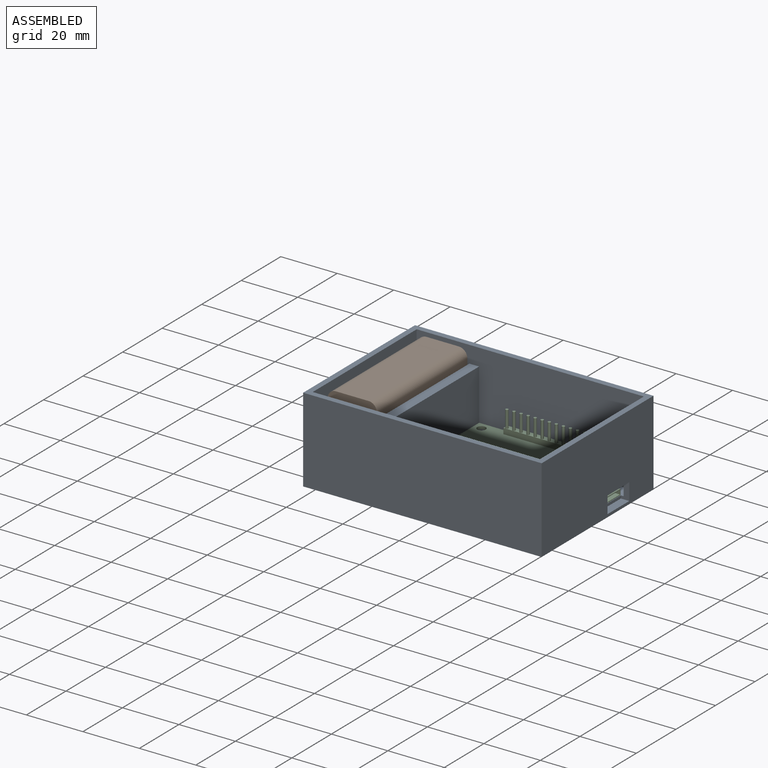
[diagram: assembled view]
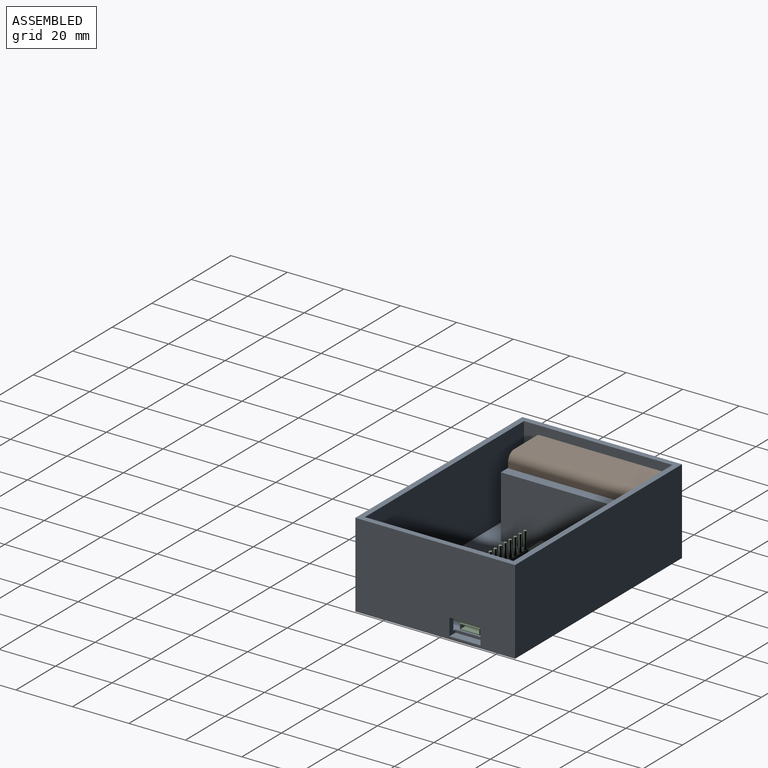
[diagram: assembled view, second angle]
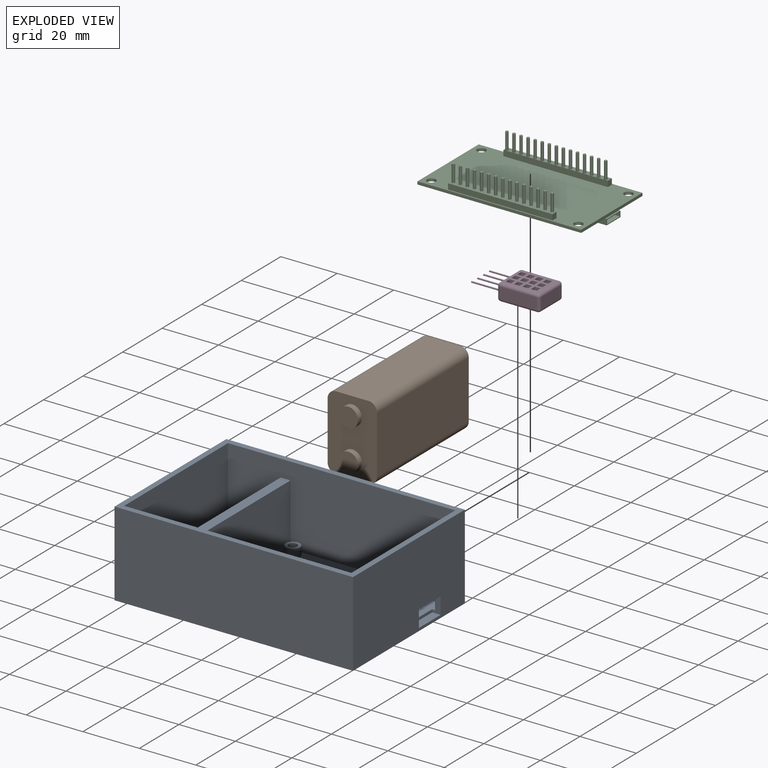
[diagram: exploded view]
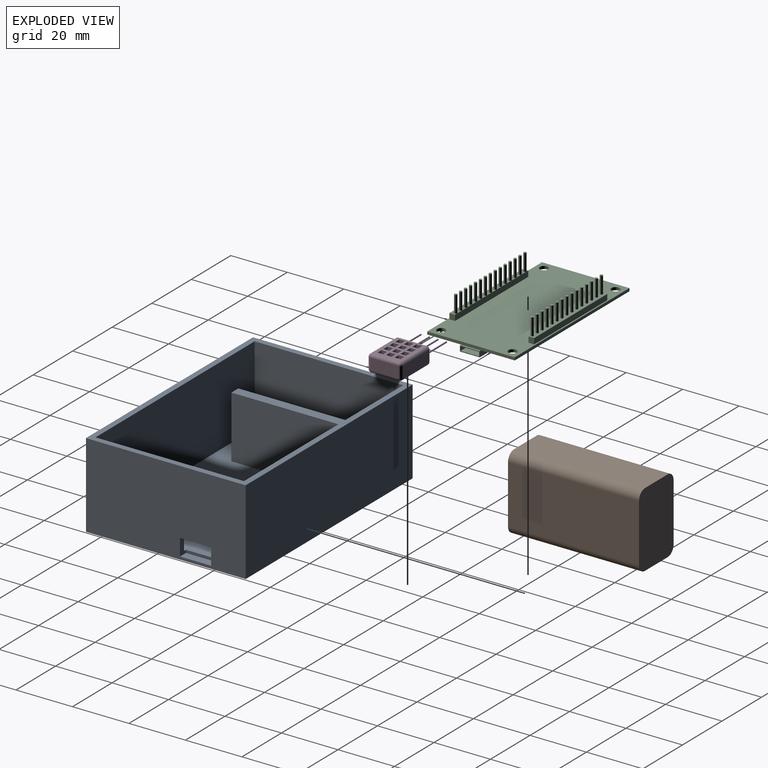
[diagram: exploded view, second angle]
ASSEMBLY  parts=4 mates=3
PART A: 42 faces, bbox 84.5x56.6x30 mm
  f0: plane 80.46x52.56mm, normal (0,0,1), area 3943.3mm2, adj f2,f8,f9,f10,f12,f15,f20,f23
  f1: plane 56.56x30mm, normal (1,0,0), area 1630.7mm2, adj f3,f4,f5,f7,f27,f28,f29,f30
  f2: plane 52.56x28mm, normal (-1,0,0), area 1400.6mm2, adj f0,f3,f8,f9,f27,f29,f30,f36
  f3: plane 84.46x56.56mm, normal (0,0,1), area 548.1mm2, adj f1,f2,f4,f5,f6,f8,f9,f10
  f4: plane 84.46x30mm, normal (0,-1,0), area 2533.9mm2, adj f1,f3,f6,f7
  f5: plane 84.46x30mm, normal (0,1,0), area 2533.9mm2, adj f1,f3,f6,f7
  f6: plane 56.56x30mm, normal (-1,0,0), area 1696.7mm2, adj f3,f4,f5,f7
  f7: plane 84.46x56.56mm, normal (0,0,-1), area 4777mm2, adj f1,f4,f5,f6
  f8: plane 80.46x28mm, normal (0,1,0), area 2252.9mm2, adj f0,f2,f3,f10
  f9: plane 80.46x28mm, normal (0,-1,0), area 2176.6mm2, adj f0,f2,f3,f10,f32,f34,f35
  f10: plane 52.56x28mm, normal (1,0,0), area 1471.6mm2, adj f0,f3,f8,f9
  f11: cylinder r=1.5mm len=3mm, axis (0,0,-1), area 28.3mm2, adj f13,f14
  f12: cylinder r=2.5mm len=5mm, axis (0,0,-1), area 47.1mm2, adj f0,f13
  f13: plane 5x5mm, normal (0,0,1), area 12.6mm2, adj f11,f12
  f14: plane 3x3mm, normal (0,0,1), area 7.1mm2, adj f11
  f15: cylinder r=2.5mm len=5mm, axis (0,0,-1), area 47.1mm2, adj f0,f17
  f16: cylinder r=1.5mm len=3mm, axis (0,0,-1), area 28.3mm2, adj f17,f18
  f17: plane 5x5mm, normal (0,0,1), area 12.6mm2, adj f15,f16
  f18: plane 3x3mm, normal (0,0,1), area 7.1mm2, adj f16
  f19: cylinder r=1.5mm len=3mm, axis (0,0,-1), area 28.3mm2, adj f21,f22
  f20: cylinder r=2.5mm len=5mm, axis (0,0,-1), area 47.1mm2, adj f0,f21
  f21: plane 5x5mm, normal (0,0,1), area 12.6mm2, adj f19,f20
  f22: plane 3x3mm, normal (0,0,1), area 7.1mm2, adj f19
  f23: cylinder r=2.5mm len=5mm, axis (0,0,-1), area 47.1mm2, adj f0,f25
  f24: cylinder r=1.5mm len=3mm, axis (0,0,-1), area 28.3mm2, adj f25,f26
  f25: plane 5x5mm, normal (0,0,1), area 12.6mm2, adj f23,f24
  f26: plane 3x3mm, normal (0,0,1), area 7.1mm2, adj f24
  f27: plane 6x3mm, normal (0,1,0), area 13mm2, adj f0,f1,f2,f28,f30,f31
  f28: plane 11x3mm, normal (0,0,1), area 33mm2, adj f1,f27,f29,f31
  f29: plane 6x3mm, normal (0,-1,0), area 13mm2, adj f0,f1,f2,f28,f30,f31
  f30: plane 11x2mm, normal (0,0,-1), area 22mm2, adj f1,f2,f27,f29
  f31: plane 11x1mm, normal (1,0,0), area 11mm2, adj f0,f27,f28,f29
  f32: plane 45.28x22mm, normal (-1,0,0), area 996.2mm2, adj f0,f9,f33,f35
  f33: plane 22x3.47mm, normal (0,-1,0), area 76.3mm2, adj f0,f32,f34,f35
  f34: plane 45.28x22mm, normal (1,0,0), area 996.2mm2, adj f0,f9,f33,f35
  f35: plane 45.28x3.47mm, normal (0,0,1), area 157.1mm2, adj f9,f32,f33,f34
  f36: plane 18x8mm, normal (0,1,0), area 144mm2, adj f0,f2,f37,f41
  f37: plane 8x3.47mm, normal (-1,0,0), area 27.8mm2, adj f0,f36,f38,f41
  f38: plane 8x2mm, normal (0,-1,0), area 16mm2, adj f0,f37,f39,f41
  f39: plane 8x1.47mm, normal (1,0,0), area 11.8mm2, adj f0,f38,f40,f41
  f40: plane 16x8mm, normal (0,-1,0), area 128mm2, adj f0,f2,f39,f41
  f41: plane 18x3.47mm, normal (0,0,1), area 38.9mm2, adj f2,f36,f37,f38,f39,f40
PART B: 14 faces, bbox 48.4x26.5x17.5 mm
  f0: plane 46.4x11.5mm, normal (0,-1,0), area 533.6mm2, adj f1,f3,f7,f9
  f1: plane 26.5x17.5mm, normal (1,0,0), area 382.3mm2, adj f0,f2,f4,f5,f6,f7,f8,f9
  f2: plane 46.4x11.5mm, normal (0,1,0), area 533.6mm2, adj f1,f3,f6,f8
  f3: plane 26.5x17.5mm, normal (-1,0,0), area 456mm2, adj f0,f2,f4,f5,f6,f7,f8,f9
  f4: plane 46.4x20.5mm, normal (0,0,1), area 951.2mm2, adj f1,f3,f8,f9
  f5: plane 46.4x20.5mm, normal (0,0,-1), area 951.2mm2, adj f1,f3,f6,f7
  f6: cylinder r=3mm len=46.4mm, axis (-1,0,0), area 218.7mm2, adj f1,f2,f3,f5
  f7: cylinder r=3mm len=46.4mm, axis (1,0,0), area 218.7mm2, adj f0,f1,f3,f5
  f8: cylinder r=3mm len=46.4mm, axis (1,0,0), area 218.7mm2, adj f1,f2,f3,f4
  f9: cylinder r=3mm len=46.4mm, axis (-1,0,0), area 218.7mm2, adj f0,f1,f3,f4
  f10: cylinder r=3.43mm len=6.85mm, axis (-1,0,0), area 43.1mm2, adj f1,f11
  f11: plane 6.85x6.85mm, normal (1,0,0), area 36.9mm2, adj f10
  f12: cylinder r=3.43mm len=6.85mm, axis (-1,0,0), area 43.1mm2, adj f1,f13
  f13: plane 6.85x6.85mm, normal (1,0,0), area 36.9mm2, adj f12
PART C: 91 faces, bbox 58.6x31x11 mm
  f0: plane 58x31mm, normal (0,0,-1), area 1621.7mm2, adj f3,f4,f5,f6,f7,f8,f9,f10
  f1: plane 7x2mm, normal (1,0,0), area 4.3mm2, adj f11,f12,f13,f15,f16,f17,f18,f19
  f2: plane 58x31mm, normal (0,0,1), area 1739.1mm2, adj f3,f4,f5,f6,f7,f8,f9,f10
  f3: plane 58x1mm, normal (0,-1,0), area 58mm2, adj f0,f2,f4,f6
  f4: plane 31x1mm, normal (1,0,0), area 31mm2, adj f0,f2,f3,f5,f11
  f5: plane 58x1mm, normal (0,1,0), area 58mm2, adj f0,f2,f4,f6
  f6: plane 31x1mm, normal (-1,0,0), area 31mm2, adj f0,f2,f3,f5
  f7: cylinder r=1.5mm len=3mm, axis (0,0,1), area 9.4mm2, adj f0,f2
  f8: cylinder r=1.5mm len=3mm, axis (0,0,1), area 9.4mm2, adj f0,f2
  f9: cylinder r=1.5mm len=3mm, axis (0,0,1), area 9.4mm2, adj f0,f2
  f10: cylinder r=1.5mm len=3mm, axis (0,0,1), area 9.4mm2, adj f0,f2
  f11: plane 7x0.63mm, normal (0,0,-1), area 4.4mm2, adj f1,f4,f12,f13
  f12: plane 5x2mm, normal (0,-1,0), area 10mm2, adj f1,f2,f11,f14,f15
  f13: plane 5x2mm, normal (0,1,0), area 10mm2, adj f1,f2,f11,f14,f15
  f14: plane 7x2mm, normal (-1,0,0), area 14mm2, adj f2,f12,f13,f15
  f15: plane 7x5mm, normal (0,0,1), area 35mm2, adj f1,f12,f13,f14
  f16: plane 3.3x1.47mm, normal (0,1,0), area 4.9mm2, adj f1,f17,f19,f20
  f17: plane 6.6x3.3mm, normal (0,0,1), area 21.8mm2, adj f1,f16,f18,f20
  f18: plane 3.3x1.47mm, normal (0,-1,0), area 4.9mm2, adj f1,f17,f19,f20
  f19: plane 6.6x3.3mm, normal (0,0,-1), area 21.8mm2, adj f1,f16,f18,f20
  f20: plane 6.6x1.47mm, normal (1,0,0), area 9.7mm2, adj f16,f17,f18,f19
  f21: plane 37x2mm, normal (0,1,0), area 74mm2, adj f0,f22,f24,f25
  f22: plane 2x2mm, normal (1,0,0), area 4mm2, adj f0,f21,f23,f25
  f23: plane 37x2mm, normal (0,-1,0), area 74mm2, adj f0,f22,f24,f25
  f24: plane 2x2mm, normal (-1,0,0), area 4mm2, adj f0,f21,f23,f25
  f25: plane 37x2mm, normal (0,0,-1), area 62.2mm2, adj f21,f22,f23,f24,f26,f28,f30,f32
  f26: cylinder r=0.5mm len=6mm, axis (0,0,1), area 18.8mm2, adj f25,f27
  f27: plane 1x1mm, normal (0,0,-1), area 0.8mm2, adj f26
  f28: cylinder r=0.5mm len=6mm, axis (0,0,1), area 18.8mm2, adj f25,f29
  f29: plane 1x1mm, normal (0,0,-1), area 0.8mm2, adj f28
  f30: cylinder r=0.5mm len=6mm, axis (0,0,1), area 18.8mm2, adj f25,f31
  f31: plane 1x1mm, normal (0,0,-1), area 0.8mm2, adj f30
  f32: cylinder r=0.5mm len=6mm, axis (0,0,1), area 18.8mm2, adj f25,f33
  f33: plane 1x1mm, normal (0,0,-1), area 0.8mm2, adj f32
  f34: cylinder r=0.5mm len=6mm, axis (0,0,1), area 18.8mm2, adj f25,f35
  f35: plane 1x1mm, normal (0,0,-1), area 0.8mm2, adj f34
  f36: cylinder r=0.5mm len=6mm, axis (0,0,1), area 18.8mm2, adj f25,f37
  f37: plane 1x1mm, normal (0,0,-1), area 0.8mm2, adj f36
  f38: cylinder r=0.5mm len=6mm, axis (0,0,1), area 18.8mm2, adj f25,f39
  f39: plane 1x1mm, normal (0,0,-1), area 0.8mm2, adj f38
  f40: cylinder r=0.5mm len=6mm, axis (0,0,1), area 18.8mm2, adj f25,f41
  f41: plane 1x1mm, normal (0,0,-1), area 0.8mm2, adj f40
  f42: cylinder r=0.5mm len=6mm, axis (0,0,1), area 18.8mm2, adj f25,f43
  f43: plane 1x1mm, normal (0,0,-1), area 0.8mm2, adj f42
  f44: cylinder r=0.5mm len=6mm, axis (0,0,1), area 18.8mm2, adj f25,f45
  f45: plane 1x1mm, normal (0,0,-1), area 0.8mm2, adj f44
  f46: cylinder r=0.5mm len=6mm, axis (0,0,1), area 18.8mm2, adj f25,f47
  f47: plane 1x1mm, normal (0,0,-1), area 0.8mm2, adj f46
  f48: cylinder r=0.5mm len=6mm, axis (0,0,1), area 18.8mm2, adj f25,f49
  f49: plane 1x1mm, normal (0,0,-1), area 0.8mm2, adj f48
  f50: cylinder r=0.5mm len=6mm, axis (0,0,1), area 18.8mm2, adj f25,f51
  f51: plane 1x1mm, normal (0,0,-1), area 0.8mm2, adj f50
  f52: cylinder r=0.5mm len=6mm, axis (0,0,1), area 18.8mm2, adj f25,f53
  f53: plane 1x1mm, normal (0,0,-1), area 0.8mm2, adj f52
  f54: cylinder r=0.5mm len=6mm, axis (0,0,1), area 18.8mm2, adj f25,f55
  f55: plane 1x1mm, normal (0,0,-1), area 0.8mm2, adj f54
  f56: plane 37x2mm, normal (0,-1,0), area 74mm2, adj f0,f57,f59,f60
  f57: plane 2x2mm, normal (-1,0,0), area 4mm2, adj f0,f56,f58,f60
  f58: plane 37x2mm, normal (0,1,0), area 74mm2, adj f0,f57,f59,f60
  f59: plane 2x2mm, normal (1,0,0), area 4mm2, adj f0,f56,f58,f60
  f60: plane 37x2mm, normal (0,0,-1), area 62.2mm2, adj f56,f57,f58,f59,f61,f63,f65,f67
  f61: cylinder r=0.5mm len=6mm, axis (0,0,1), area 18.8mm2, adj f60,f62
  f62: plane 1x1mm, normal (0,0,-1), area 0.8mm2, adj f61
  f63: cylinder r=0.5mm len=6mm, axis (0,0,1), area 18.8mm2, adj f60,f64
  f64: plane 1x1mm, normal (0,0,-1), area 0.8mm2, adj f63
  f65: cylinder r=0.5mm len=6mm, axis (0,0,1), area 18.8mm2, adj f60,f66
  f66: plane 1x1mm, normal (0,0,-1), area 0.8mm2, adj f65
  f67: cylinder r=0.5mm len=6mm, axis (0,0,1), area 18.8mm2, adj f60,f68
  f68: plane 1x1mm, normal (0,0,-1), area 0.8mm2, adj f67
  f69: cylinder r=0.5mm len=6mm, axis (0,0,1), area 18.8mm2, adj f60,f70
  f70: plane 1x1mm, normal (0,0,-1), area 0.8mm2, adj f69
  f71: cylinder r=0.5mm len=6mm, axis (0,0,1), area 18.8mm2, adj f60,f72
  f72: plane 1x1mm, normal (0,0,-1), area 0.8mm2, adj f71
  f73: cylinder r=0.5mm len=6mm, axis (0,0,1), area 18.8mm2, adj f60,f74
  f74: plane 1x1mm, normal (0,0,-1), area 0.8mm2, adj f73
  f75: cylinder r=0.5mm len=6mm, axis (0,0,1), area 18.8mm2, adj f60,f76
  f76: plane 1x1mm, normal (0,0,-1), area 0.8mm2, adj f75
  f77: cylinder r=0.5mm len=6mm, axis (0,0,1), area 18.8mm2, adj f60,f78
  f78: plane 1x1mm, normal (0,0,-1), area 0.8mm2, adj f77
  f79: cylinder r=0.5mm len=6mm, axis (0,0,1), area 18.8mm2, adj f60,f80
  f80: plane 1x1mm, normal (0,0,-1), area 0.8mm2, adj f79
  f81: cylinder r=0.5mm len=6mm, axis (0,0,1), area 18.8mm2, adj f60,f82
  f82: plane 1x1mm, normal (0,0,-1), area 0.8mm2, adj f81
  f83: cylinder r=0.5mm len=6mm, axis (0,0,1), area 18.8mm2, adj f60,f84
  f84: plane 1x1mm, normal (0,0,-1), area 0.8mm2, adj f83
  f85: cylinder r=0.5mm len=6mm, axis (0,0,1), area 18.8mm2, adj f60,f86
  f86: plane 1x1mm, normal (0,0,-1), area 0.8mm2, adj f85
  f87: cylinder r=0.5mm len=6mm, axis (0,0,1), area 18.8mm2, adj f60,f88
  f88: plane 1x1mm, normal (0,0,-1), area 0.8mm2, adj f87
  f89: cylinder r=0.5mm len=6mm, axis (0,0,1), area 18.8mm2, adj f60,f90
  f90: plane 1x1mm, normal (0,0,-1), area 0.8mm2, adj f89
PART D: 88 faces, bbox 12x25x6 mm
  f0: plane 13x10mm, normal (0,0,1), area 82mm2, adj f9,f10,f19,f20,f34,f35,f36,f37
  f1: plane 10x4mm, normal (0,-1,0), area 39.2mm2, adj f14,f19,f22,f25,f26,f28,f30,f32
  f2: plane 13x4mm, normal (1,0,0), area 52mm2, adj f11,f20,f21,f25
  f3: plane 10x4mm, normal (0,1,0), area 40mm2, adj f6,f10,f11,f12
  f4: plane 13x4mm, normal (-1,0,0), area 52mm2, adj f6,f9,f13,f14
  f5: plane 13x10mm, normal (0,0,-1), area 130mm2, adj f12,f13,f21,f22
  f6: cylinder r=1mm len=4mm, axis (0,0,1), area 6.3mm2, adj f3,f4,f7,f8
  f7: sphere r=1mm, area 1.6mm2, adj f6,f9,f10
  f8: sphere r=1mm, area 1.6mm2, adj f6,f12,f13
  f9: cylinder r=1mm len=13mm, axis (0,1,0), area 20.4mm2, adj f0,f4,f7,f15
  f10: cylinder r=1mm len=10mm, axis (1,0,0), area 15.7mm2, adj f0,f3,f7,f16
  f11: cylinder r=1mm len=4mm, axis (0,0,-1), area 6.3mm2, adj f2,f3,f16,f17
  f12: cylinder r=1mm len=10mm, axis (-1,0,0), area 15.7mm2, adj f3,f5,f8,f17
  f13: cylinder r=1mm len=13mm, axis (0,-1,0), area 20.4mm2, adj f4,f5,f8,f18
  f14: cylinder r=1mm len=4mm, axis (0,0,-1), area 6.3mm2, adj f1,f4,f15,f18
  f15: sphere r=1mm, area 1.6mm2, adj f9,f14,f19
  f16: sphere r=1mm, area 1.6mm2, adj f10,f11,f20
  f17: sphere r=1mm, area 1.6mm2, adj f11,f12,f21
  f18: sphere r=1mm, area 1.6mm2, adj f13,f14,f22
  f19: cylinder r=1mm len=10mm, axis (-1,0,0), area 15.7mm2, adj f0,f1,f15,f23
  f20: cylinder r=1mm len=13mm, axis (0,-1,0), area 20.4mm2, adj f0,f2,f16,f23
  f21: cylinder r=1mm len=13mm, axis (0,1,0), area 20.4mm2, adj f2,f5,f17,f24
  f22: cylinder r=1mm len=10mm, axis (1,0,0), area 15.7mm2, adj f1,f5,f18,f24
  f23: sphere r=1mm, area 1.6mm2, adj f19,f20,f25
  f24: sphere r=1mm, area 1.6mm2, adj f21,f22,f25
  f25: cylinder r=1mm len=4mm, axis (0,0,1), area 6.3mm2, adj f1,f2,f23,f24
  f26: cylinder r=0.25mm len=10mm, axis (0,1,0), area 15.7mm2, adj f1,f27
  f27: plane 0.5x0.5mm, normal (0,-1,0), area 0.2mm2, adj f26
  f28: cylinder r=0.25mm len=10mm, axis (0,1,0), area 15.7mm2, adj f1,f29
  f29: plane 0.5x0.5mm, normal (0,-1,0), area 0.2mm2, adj f28
  f30: cylinder r=0.25mm len=10mm, axis (0,1,0), area 15.7mm2, adj f1,f31
  f31: plane 0.5x0.5mm, normal (0,-1,0), area 0.2mm2, adj f30
  f32: cylinder r=0.25mm len=10mm, axis (0,1,0), area 15.7mm2, adj f1,f33
  f33: plane 0.5x0.5mm, normal (0,-1,0), area 0.2mm2, adj f32
  f34: plane 2x1mm, normal (-1,0,0), area 2mm2, adj f0,f35,f36,f82
  f35: plane 2x1mm, normal (0,1,0), area 2mm2, adj f0,f34,f37,f82
  f36: plane 2x1mm, normal (0,-1,0), area 2mm2, adj f0,f34,f37,f82
  f37: plane 2x1mm, normal (1,0,0), area 2mm2, adj f0,f35,f36,f82
  f38: plane 2x1mm, normal (-1,0,0), area 2mm2, adj f0,f39,f40,f82
  f39: plane 2x1mm, normal (0,1,0), area 2mm2, adj f0,f38,f41,f82
  f40: plane 2x1mm, normal (0,-1,0), area 2mm2, adj f0,f38,f41,f82
  f41: plane 2x1mm, normal (1,0,0), area 2mm2, adj f0,f39,f40,f82
  f42: plane 2x1mm, normal (1,0,0), area 2mm2, adj f0,f43,f45,f82
  f43: plane 2x1mm, normal (0,1,0), area 2mm2, adj f0,f42,f44,f82
  f44: plane 2x1mm, normal (-1,0,0), area 2mm2, adj f0,f43,f45,f82
  f45: plane 2x1mm, normal (0,-1,0), area 2mm2, adj f0,f42,f44,f82
  f46: plane 2x1mm, normal (1,0,0), area 2mm2, adj f0,f47,f49,f82
  f47: plane 2x1mm, normal (0,1,0), area 2mm2, adj f0,f46,f48,f82
  f48: plane 2x1mm, normal (-1,0,0), area 2mm2, adj f0,f47,f49,f82
  f49: plane 2x1mm, normal (0,-1,0), area 2mm2, adj f0,f46,f48,f82
  f50: plane 2x1mm, normal (1,0,0), area 2mm2, adj f0,f51,f53,f82
  f51: plane 2x1mm, normal (0,1,0), area 2mm2, adj f0,f50,f52,f82
  f52: plane 2x1mm, normal (-1,0,0), area 2mm2, adj f0,f51,f53,f82
  f53: plane 2x1mm, normal (0,-1,0), area 2mm2, adj f0,f50,f52,f82
  f54: plane 2x1mm, normal (1,0,0), area 2mm2, adj f0,f55,f57,f82
  f55: plane 2x1mm, normal (0,1,0), area 2mm2, adj f0,f54,f56,f82
  f56: plane 2x1mm, normal (-1,0,0), area 2mm2, adj f0,f55,f57,f82
  f57: plane 2x1mm, normal (0,-1,0), area 2mm2, adj f0,f54,f56,f82
  f58: plane 2x1mm, normal (-1,0,0), area 2mm2, adj f0,f59,f60,f82
  f59: plane 2x1mm, normal (0,1,0), area 2mm2, adj f0,f58,f61,f82
  f60: plane 2x1mm, normal (0,-1,0), area 2mm2, adj f0,f58,f61,f82
  f61: plane 2x1mm, normal (1,0,0), area 2mm2, adj f0,f59,f60,f82
  f62: plane 2x1mm, normal (0,-1,0), area 2mm2, adj f0,f63,f64,f82
  f63: plane 2x1mm, normal (-1,0,0), area 2mm2, adj f0,f62,f65,f82
  f64: plane 2x1mm, normal (1,0,0), area 2mm2, adj f0,f62,f65,f82
  f65: plane 2x1mm, normal (0,1,0), area 2mm2, adj f0,f63,f64,f82
  f66: plane 2x1mm, normal (0,-1,0), area 2mm2, adj f0,f67,f68,f82
  f67: plane 2x1mm, normal (-1,0,0), area 2mm2, adj f0,f66,f69,f82
  f68: plane 2x1mm, normal (1,0,0), area 2mm2, adj f0,f66,f69,f82
  f69: plane 2x1mm, normal (0,1,0), area 2mm2, adj f0,f67,f68,f82
  f70: plane 2x1mm, normal (-1,0,0), area 2mm2, adj f0,f71,f72,f82
  f71: plane 2x1mm, normal (0,1,0), area 2mm2, adj f0,f70,f73,f82
  f72: plane 2x1mm, normal (0,-1,0), area 2mm2, adj f0,f70,f73,f82
  f73: plane 2x1mm, normal (1,0,0), area 2mm2, adj f0,f71,f72,f82
  f74: plane 2x1mm, normal (1,0,0), area 2mm2, adj f0,f75,f77,f82
  f75: plane 2x1mm, normal (0,1,0), area 2mm2, adj f0,f74,f76,f82
  f76: plane 2x1mm, normal (-1,0,0), area 2mm2, adj f0,f75,f77,f82
  f77: plane 2x1mm, normal (0,-1,0), area 2mm2, adj f0,f74,f76,f82
  f78: plane 2x1mm, normal (1,0,0), area 2mm2, adj f0,f79,f81,f82
  f79: plane 2x1mm, normal (0,1,0), area 2mm2, adj f0,f78,f80,f82
  f80: plane 2x1mm, normal (-1,0,0), area 2mm2, adj f0,f79,f81,f82
  f81: plane 2x1mm, normal (0,-1,0), area 2mm2, adj f0,f78,f80,f82
  f82: plane 13x10mm, normal (0,0,-1), area 82mm2, adj f34,f35,f36,f37,f38,f39,f40,f41
  f83: plane 10x4mm, normal (0,1,0), area 40mm2, adj f82,f84,f86,f87
  f84: plane 13x4mm, normal (-1,0,0), area 52mm2, adj f82,f83,f85,f87
  f85: plane 10x4mm, normal (0,-1,0), area 40mm2, adj f82,f84,f86,f87
  f86: plane 13x4mm, normal (1,0,0), area 52mm2, adj f82,f83,f85,f87
  f87: plane 13x10mm, normal (0,0,1), area 130mm2, adj f83,f84,f85,f86
PLACE A t=(0,0,-13.99)mm fixed
PLACE B rot(axis=(0.58,-0.58,-0.58),120deg) t=(-22.29,3.79,1.26)mm
PLACE C rot(axis=(1,0,0),180deg) t=(10.66,10.88,-7.99)mm
PLACE D rot(axis=(0,0,-1),90deg) t=(32.18,-19.83,-11.99)mm
MATE revolute C.f10 <-> A.f11  axis (0,0,-1) through (-15.37,23.54,-8.99)mm
MATE planar D.f5 <-> A.f0  axis (0,0,-1) through (32.18,-19.83,-11.99)mm
MATE planar B.f0 <-> A.f0  axis (0,0,-1) through (-31.04,3.79,-11.99)mm
